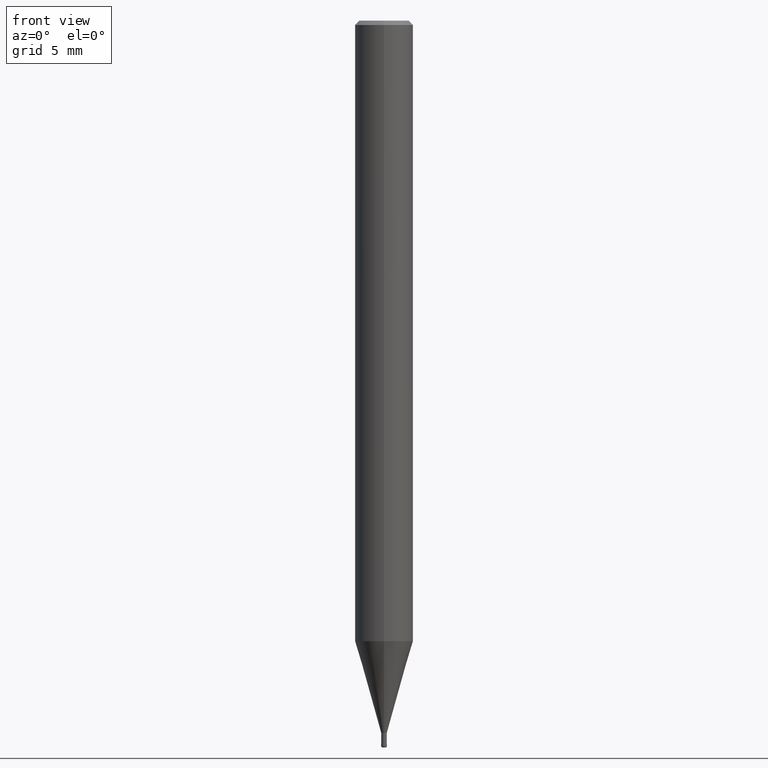
[diagram: clean part render]
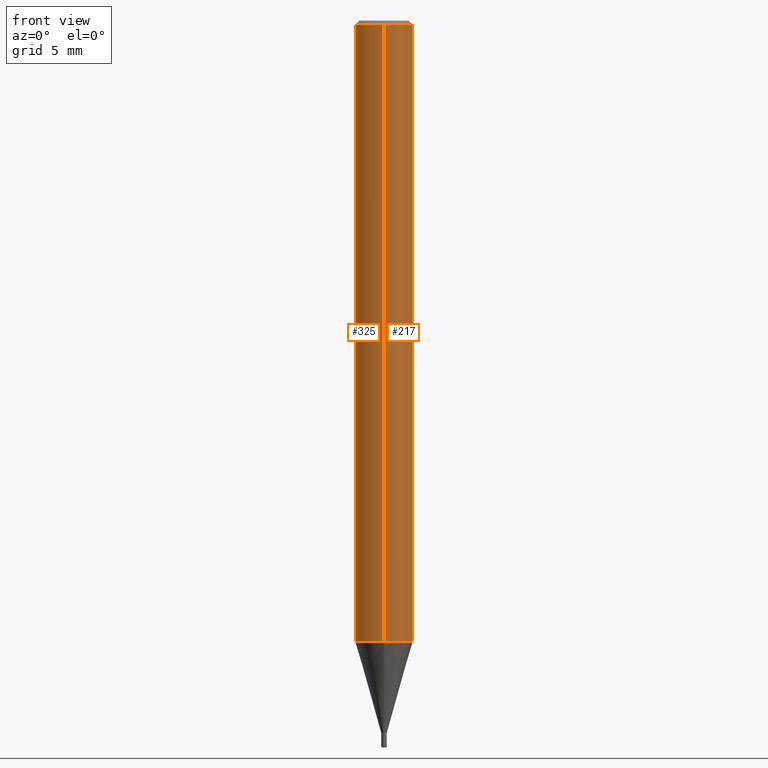
[diagram: same view with one multi-face feature highlighted, each face labeled with its STEP entity id]
A machine part, front view. The highlighted faces form ONE feature: a constant-radius fillet chain: 2 tangent blend faces with common blend radius 2 mm. The faces share edges in the B-rep.
Their STEP definitions:
[1] entity #325 (Cylinder):
#173=EDGE_CURVE('',#189,#281,#413,.T.);
#189=VERTEX_POINT('',#429);
#227=EDGE_CURVE('',#307,#281,#472,.T.);
#245=EDGE_CURVE('',#307,#273,#496,.T.);
#273=VERTEX_POINT('',#527);
#281=VERTEX_POINT('',#538);
#285=EDGE_CURVE('',#273,#189,#543,.T.);
#307=VERTEX_POINT('',#567);
#325=ADVANCED_FACE('',(#586),#587,.T.);
#413=LINE('',#678,#679);
#429=CARTESIAN_POINT('',(0.0,2.0,-0.289999999999999));
#472=CIRCLE('',#757,2.0);
#496=LINE('',#783,#784);
#527=CARTESIAN_POINT('',(2.44921270764475E-016,-2.0,-0.289999999999999));
#538=CARTESIAN_POINT('',(0.0,2.0,-42.686));
#543=CIRCLE('',#842,2.0);
#567=CARTESIAN_POINT('',(2.44921270764475E-016,-2.0,-42.686));
#586=FACE_OUTER_BOUND('',#901,.T.);
#587=CYLINDRICAL_SURFACE('',#902,2.0);
#678=CARTESIAN_POINT('',(-2.44921270764475E-016,2.0,-21.488));
#679=VECTOR('',#991,1.0);
#757=AXIS2_PLACEMENT_3D('',#1063,#1064,#1065);
#783=CARTESIAN_POINT('',(2.44921270764475E-016,-2.0,-21.488));
#784=VECTOR('',#1101,1.0);
#842=AXIS2_PLACEMENT_3D('',#1165,#1166,#1167);
#901=EDGE_LOOP('',(#1216,#1217,#1218,#1219));
#902=AXIS2_PLACEMENT_3D('',#1220,#1221,#1222);
#991=DIRECTION('',(0.0,0.0,-1.0));
#1063=CARTESIAN_POINT('',(0.0,0.0,-42.686));
#1064=DIRECTION('',(0.0,0.0,-1.0));
#1065=DIRECTION('',(0.0,1.0,0.0));
#1101=DIRECTION('',(-0.0,-0.0,1.0));
#1165=CARTESIAN_POINT('',(0.0,0.0,-0.289999999999999));
#1166=DIRECTION('',(0.0,0.0,-1.0));
#1167=DIRECTION('',(0.0,1.0,0.0));
#1216=ORIENTED_EDGE('',*,*,#173,.T.);
#1217=ORIENTED_EDGE('',*,*,#227,.F.);
#1218=ORIENTED_EDGE('',*,*,#245,.T.);
#1219=ORIENTED_EDGE('',*,*,#285,.T.);
#1220=CARTESIAN_POINT('',(0.0,0.0,-21.488));
#1221=DIRECTION('',(-0.0,-0.0,1.0));
#1222=DIRECTION('',(0.0,1.0,0.0));
[2] entity #217 (Cylinder):
#173=EDGE_CURVE('',#189,#281,#413,.T.);
#189=VERTEX_POINT('',#429);
#203=EDGE_CURVE('',#189,#273,#446,.T.);
#217=ADVANCED_FACE('',(#460),#461,.T.);
#219=EDGE_CURVE('',#281,#307,#463,.T.);
#245=EDGE_CURVE('',#307,#273,#496,.T.);
#273=VERTEX_POINT('',#527);
#281=VERTEX_POINT('',#538);
#307=VERTEX_POINT('',#567);
#413=LINE('',#678,#679);
#429=CARTESIAN_POINT('',(0.0,2.0,-0.289999999999999));
#446=CIRCLE('',#726,2.0);
#460=FACE_OUTER_BOUND('',#743,.T.);
#461=CYLINDRICAL_SURFACE('',#744,2.0);
#463=CIRCLE('',#747,2.0);
#496=LINE('',#783,#784);
#527=CARTESIAN_POINT('',(2.44921270764475E-016,-2.0,-0.289999999999999));
#538=CARTESIAN_POINT('',(0.0,2.0,-42.686));
#567=CARTESIAN_POINT('',(2.44921270764475E-016,-2.0,-42.686));
#678=CARTESIAN_POINT('',(-2.44921270764475E-016,2.0,-21.488));
#679=VECTOR('',#991,1.0);
#726=AXIS2_PLACEMENT_3D('',#1032,#1033,#1034);
#743=EDGE_LOOP('',(#1045,#1046,#1047,#1048));
#744=AXIS2_PLACEMENT_3D('',#1049,#1050,#1051);
#747=AXIS2_PLACEMENT_3D('',#1052,#1053,#1054);
#783=CARTESIAN_POINT('',(2.44921270764475E-016,-2.0,-21.488));
#784=VECTOR('',#1101,1.0);
#991=DIRECTION('',(0.0,0.0,-1.0));
#1032=CARTESIAN_POINT('',(0.0,0.0,-0.289999999999999));
#1033=DIRECTION('',(0.0,0.0,-1.0));
#1034=DIRECTION('',(0.0,1.0,0.0));
#1045=ORIENTED_EDGE('',*,*,#173,.F.);
#1046=ORIENTED_EDGE('',*,*,#203,.T.);
#1047=ORIENTED_EDGE('',*,*,#245,.F.);
#1048=ORIENTED_EDGE('',*,*,#219,.F.);
#1049=CARTESIAN_POINT('',(0.0,0.0,-21.488));
#1050=DIRECTION('',(-0.0,-0.0,1.0));
#1051=DIRECTION('',(0.0,1.0,0.0));
#1052=CARTESIAN_POINT('',(0.0,0.0,-42.686));
#1053=DIRECTION('',(0.0,0.0,-1.0));
#1054=DIRECTION('',(0.0,1.0,0.0));
#1101=DIRECTION('',(-0.0,-0.0,1.0));